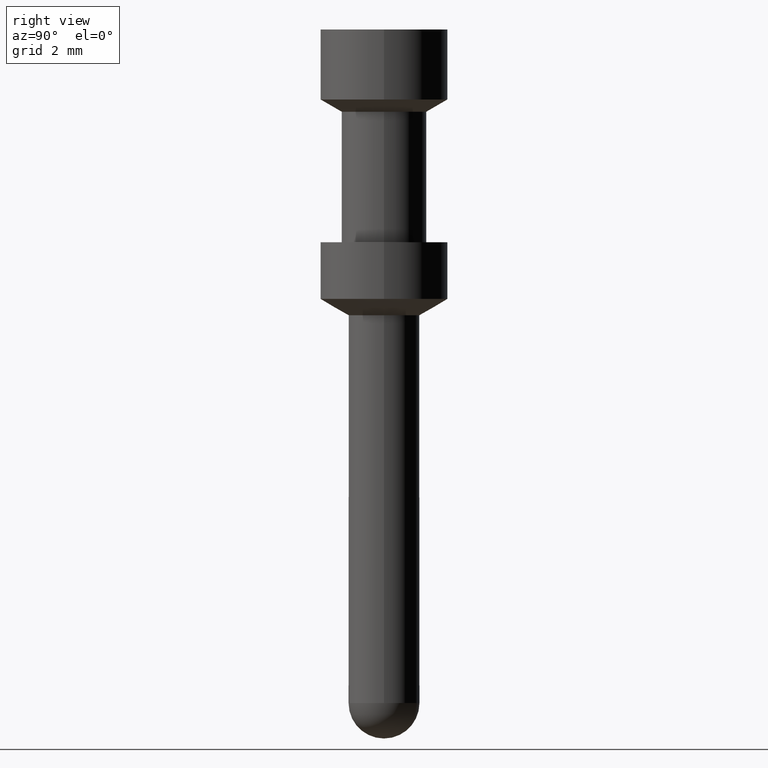
[diagram: clean part render]
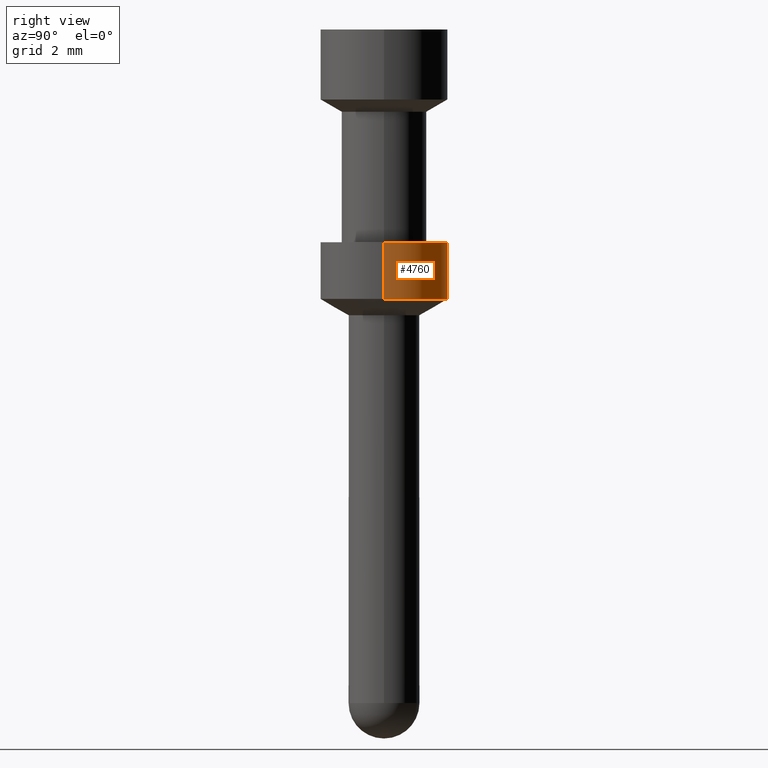
[diagram: same view with one face highlighted and labeled with its STEP entity id]
A machine part, right view. The second image highlights one B-rep face of the part: STEP entity #4760.
In plain terms, the highlighted cylindrical surface (partial cylindrical patch) has radius 2.25 mm, axis along (0, -0, 1).
Its self-contained STEP definition (entity closure, byte-faithful):
#210=CARTESIAN_POINT('',(33.587952,72.157183,-6.59999999999999));
#220=DIRECTION('',(0.,-1.,-1.83697019872103E-16));
#230=DIRECTION('',(1.,0.,0.));
#240=AXIS2_PLACEMENT_3D('',#210,#220,#230);
#250=CIRCLE('',#240,2.25);
#260=CARTESIAN_POINT('',(35.837952,72.157183,-6.59999999999999));
#270=VERTEX_POINT('',#260);
#280=CARTESIAN_POINT('',(31.337952,72.157183,-6.59999999999999));
#290=VERTEX_POINT('',#280);
#300=EDGE_CURVE('',#270,#290,#250,.T.);
#1060=CARTESIAN_POINT('',(35.837952,74.157183,-6.59999999999999));
#1070=VERTEX_POINT('',#1060);
#1160=CARTESIAN_POINT('',(31.337952,74.157183,-6.59999999999999));
#1170=VERTEX_POINT('',#1160);
#1200=CARTESIAN_POINT('',(33.587952,74.157183,-6.59999999999999));
#1210=DIRECTION('',(0.,-1.,0.));
#1220=DIRECTION('',(-1.,0.,0.));
#1230=AXIS2_PLACEMENT_3D('',#1200,#1210,#1220);
#1240=CIRCLE('',#1230,2.25);
#1730=CARTESIAN_POINT('',(35.837952,72.157183,-6.59999999999999));
#1740=DIRECTION('',(0.,-1.,-1.83697019872103E-16));
#1750=VECTOR('',#1740,1.);
#1760=LINE('',#1730,#1750);
#1770=EDGE_CURVE('',#1070,#270,#1760,.T.);
#1800=CARTESIAN_POINT('',(31.337952,72.157183,-6.59999999999999));
#1810=DIRECTION('',(0.,-1.,-1.83697019872103E-16));
#1820=VECTOR('',#1810,1.);
#1830=LINE('',#1800,#1820);
#1840=EDGE_CURVE('',#1170,#290,#1830,.T.);
#4640=CARTESIAN_POINT('',(33.587952,72.157183,-6.59999999999999));
#4650=DIRECTION('',(0.,-1.,-1.83697019872103E-16));
#4660=DIRECTION('',(1.,0.,0.));
#4670=AXIS2_PLACEMENT_3D('',#4640,#4650,#4660);
#4680=CYLINDRICAL_SURFACE('',#4670,2.25);
#4690=ORIENTED_EDGE('',*,*,#300,.F.);
#4700=ORIENTED_EDGE('',*,*,#1840,.T.);
#4710=EDGE_CURVE('',#1070,#1170,#1240,.T.);
#4720=ORIENTED_EDGE('',*,*,#4710,.T.);
#4730=ORIENTED_EDGE('',*,*,#1770,.F.);
#4740=EDGE_LOOP('',(#4730,#4720,#4700,#4690));
#4750=FACE_OUTER_BOUND('',#4740,.T.);
#4760=ADVANCED_FACE('',(#4750),#4680,.T.);